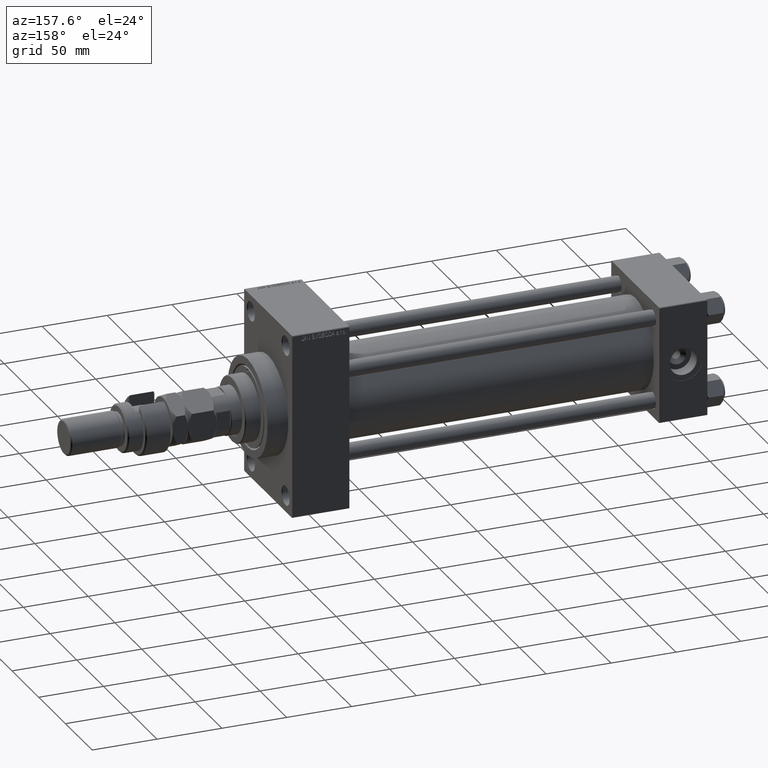
[diagram: clean part render]
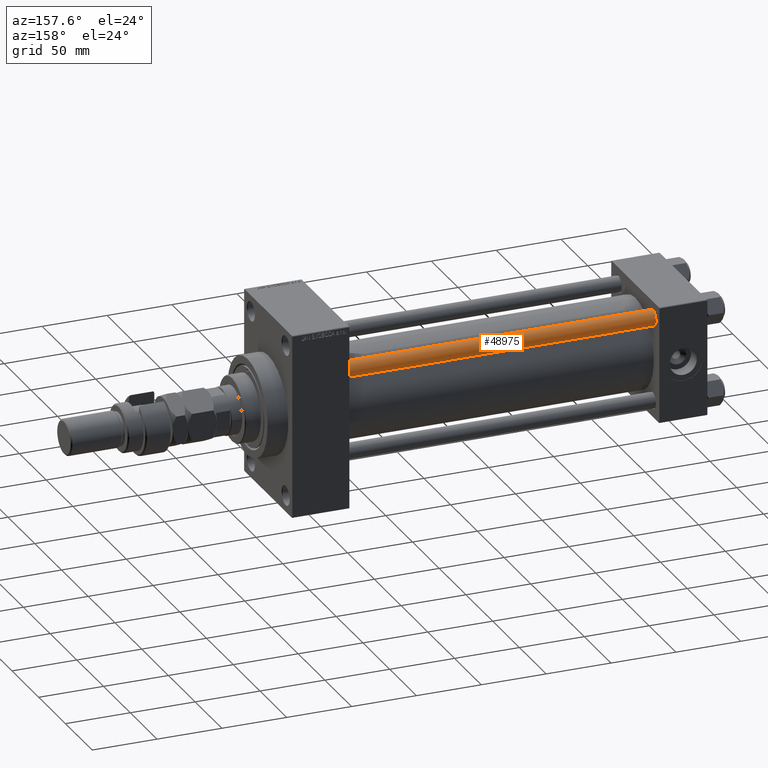
[diagram: same view with one face highlighted and labeled with its STEP entity id]
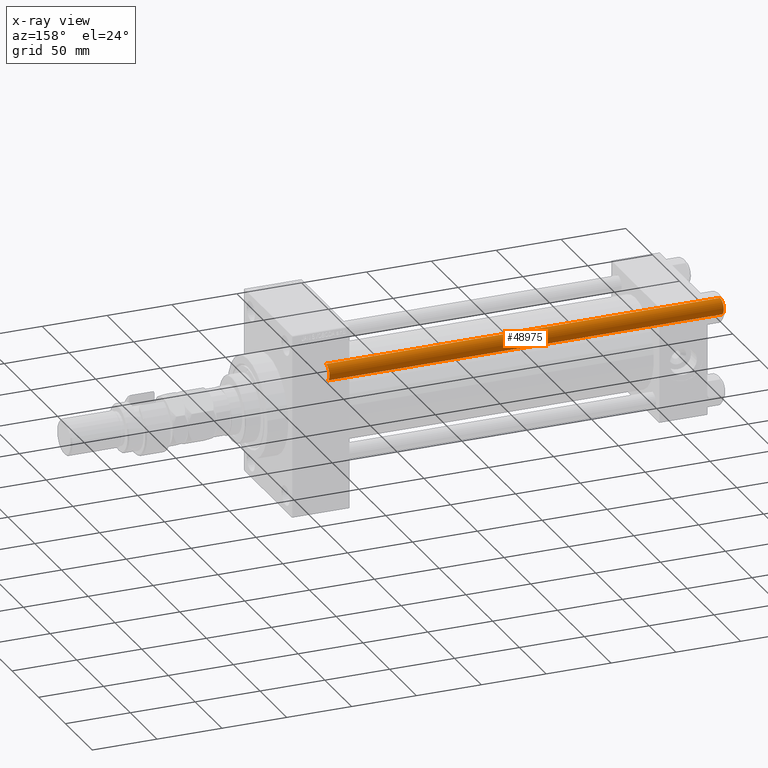
[diagram: x-ray of the same camera — body ghosted, the highlighted face saturated]
A machine part, auxiliary view. The second image highlights one B-rep face of the part: STEP entity #48975.
The next image is the same camera in x-ray: the body ghosted, the highlighted face saturated — about 0% of this face is hidden behind the body in this view.
In plain terms, the highlighted cylindrical surface (edge-blend (fillet) strip) has radius 6 mm, axis along (-1, -0, 0).
Its self-contained STEP definition (entity closure, byte-faithful):
#14 = CIRCLE ( 'NONE', #45507, 6.000000000000000888 ) ;
#268 = VERTEX_POINT ( 'NONE', #36234 ) ;
#1390 = CYLINDRICAL_SURFACE ( 'NONE', #40465, 6.000000000000000888 ) ;
#2614 = CARTESIAN_POINT ( 'NONE',  ( 0.000000000000000000, 0.000000000000000000, 304.5000000000000000 ) ) ;
#2740 = EDGE_CURVE ( 'NONE', #268, #27934, #14, .T. ) ;
#3168 = ORIENTED_EDGE ( 'NONE', *, *, #2740, .T. ) ;
#6651 = CARTESIAN_POINT ( 'NONE',  ( 6.000000000000000888, 7.347880794884120722E-16, 304.5000000000000000 ) ) ;
#10723 = LINE ( 'NONE', #22705, #11636 ) ;
#11287 = ORIENTED_EDGE ( 'NONE', *, *, #34372, .T. ) ;
#11636 = VECTOR ( 'NONE', #45578, 1000.000000000000000 ) ;
#13064 = FACE_OUTER_BOUND ( 'NONE', #38771, .T. ) ;
#13712 = CARTESIAN_POINT ( 'NONE',  ( -6.000000000000000888, 0.000000000000000000, 0.5000000000000004441 ) ) ;
#19974 = CIRCLE ( 'NONE', #43525, 6.000000000000000888 ) ;
#22239 = EDGE_CURVE ( 'NONE', #42289, #36803, #19974, .T. ) ;
#22705 = CARTESIAN_POINT ( 'NONE',  ( 6.000000000000000888, 7.347880794884120722E-16, 305.0000000000000000 ) ) ;
#22957 = DIRECTION ( 'NONE',  ( 1.000000000000000000, 0.000000000000000000, 0.000000000000000000 ) ) ;
#24854 = EDGE_CURVE ( 'NONE', #42289, #27934, #30907, .T. ) ;
#25502 = DIRECTION ( 'NONE',  ( 1.000000000000000000, 0.000000000000000000, 0.000000000000000000 ) ) ;
#27365 = CARTESIAN_POINT ( 'NONE',  ( -6.000000000000000888, 0.000000000000000000, 305.0000000000000000 ) ) ;
#27934 = VERTEX_POINT ( 'NONE', #13712 ) ;
#28591 = DIRECTION ( 'NONE',  ( -1.000000000000000000, 0.000000000000000000, 0.000000000000000000 ) ) ;
#30153 = ORIENTED_EDGE ( 'NONE', *, *, #22239, .T. ) ;
#30907 = LINE ( 'NONE', #27365, #49324 ) ;
#32131 = DIRECTION ( 'NONE',  ( -0.000000000000000000, -0.000000000000000000, -1.000000000000000000 ) ) ;
#33723 = CARTESIAN_POINT ( 'NONE',  ( -6.000000000000000888, 0.000000000000000000, 304.5000000000000000 ) ) ;
#34372 = EDGE_CURVE ( 'NONE', #36803, #268, #10723, .T. ) ;
#35379 = CARTESIAN_POINT ( 'NONE',  ( 0.000000000000000000, 0.000000000000000000, 0.5000000000000004441 ) ) ;
#36234 = CARTESIAN_POINT ( 'NONE',  ( 6.000000000000000888, 7.347880794884120722E-16, 0.5000000000000004441 ) ) ;
#36803 = VERTEX_POINT ( 'NONE', #6651 ) ;
#37735 = ORIENTED_EDGE ( 'NONE', *, *, #24854, .F. ) ;
#38771 = EDGE_LOOP ( 'NONE', ( #30153, #11287, #3168, #37735 ) ) ;
#40465 = AXIS2_PLACEMENT_3D ( 'NONE', #48190, #32131, #28591 ) ;
#42289 = VERTEX_POINT ( 'NONE', #33723 ) ;
#43525 = AXIS2_PLACEMENT_3D ( 'NONE', #2614, #49150, #25502 ) ;
#45507 = AXIS2_PLACEMENT_3D ( 'NONE', #35379, #50159, #22957 ) ;
#45578 = DIRECTION ( 'NONE',  ( -0.000000000000000000, -0.000000000000000000, -1.000000000000000000 ) ) ;
#48190 = CARTESIAN_POINT ( 'NONE',  ( 0.000000000000000000, 0.000000000000000000, 305.0000000000000000 ) ) ;
#48975 = ADVANCED_FACE ( 'NONE', ( #13064 ), #1390, .T. ) ;
#49150 = DIRECTION ( 'NONE',  ( 0.000000000000000000, 0.000000000000000000, -1.000000000000000000 ) ) ;
#49324 = VECTOR ( 'NONE', #50262, 1000.000000000000000 ) ;
#50159 = DIRECTION ( 'NONE',  ( -0.000000000000000000, -0.000000000000000000, 1.000000000000000000 ) ) ;
#50262 = DIRECTION ( 'NONE',  ( -0.000000000000000000, -0.000000000000000000, -1.000000000000000000 ) ) ;